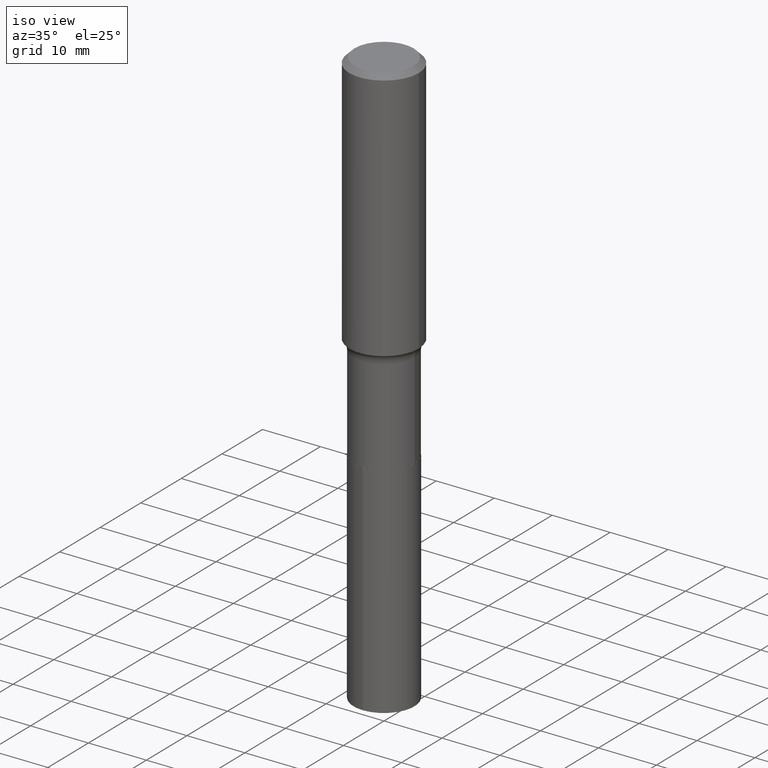
[diagram: clean part render]
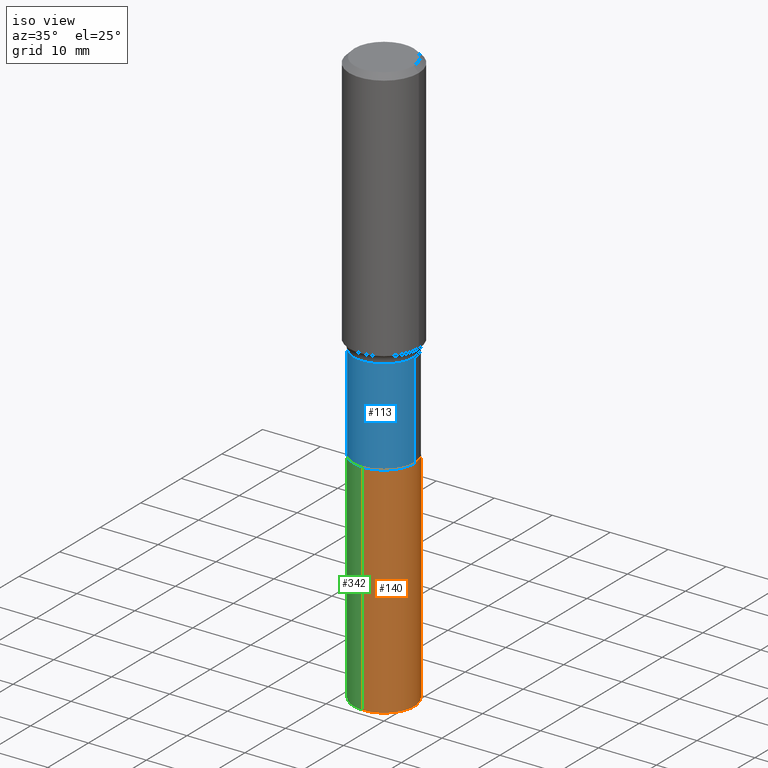
[diagram: same view with three faces highlighted in distinct colors, each labeled with its STEP entity id]
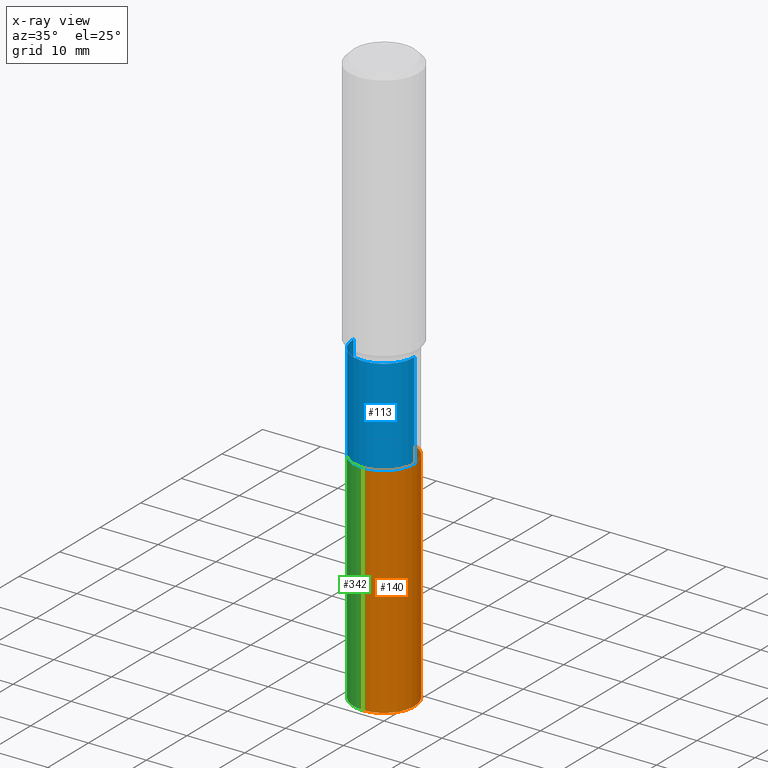
[diagram: x-ray of the same camera — body ghosted, the three highlighted faces saturated]
A machine part, iso view with three faces highlighted in distinct colors.
The next image is the same camera in x-ray (body ghosted, the three faces saturated) — at least one of them is partly hidden behind the body in this view.
Their STEP definitions:

[orange] entity #140 — the highlighted cylindrical surface (partial cylindrical patch) has radius 5.2502 mm, axis along (-0, 0, 1).
#3 = ORIENTED_EDGE ( 'NONE', *, *, #363, .F. ) ;
#7 = EDGE_CURVE ( 'NONE', #198, #469, #202, .T. ) ;
#42 = CARTESIAN_POINT ( 'NONE',  ( 5.969144809017299038E-29, -8.522356799982232966E-15, -2.440900000000000070 ) ) ;
#51 = FACE_OUTER_BOUND ( 'NONE', #417, .T. ) ;
#56 = DIRECTION ( 'NONE',  ( -6.982962677686265133E-15, -1.000000000000000000, 3.964946289788480107E-15 ) ) ;
#59 = AXIS2_PLACEMENT_3D ( 'NONE', #199, #397, #56 ) ;
#66 = DIRECTION ( 'NONE',  ( -2.445425754346182208E-29, 3.491542991526886220E-15, 1.000000000000000000 ) ) ;
#132 = LINE ( 'NONE', #265, #356 ) ;
#140 = ADVANCED_FACE ( 'NONE', ( #51 ), #403, .T. ) ;
#187 = VERTEX_POINT ( 'NONE', #279 ) ;
#198 = VERTEX_POINT ( 'NONE', #427 ) ;
#199 = CARTESIAN_POINT ( 'NONE',  ( 5.969144809017299038E-29, -8.522356799982232966E-15, -2.440900000000000070 ) ) ;
#202 = CIRCLE ( 'NONE', #375, 0.2067000000000000226 ) ;
#204 = CIRCLE ( 'NONE', #300, 0.2067000000000000226 ) ;
#225 = DIRECTION ( 'NONE',  ( -2.445425754346182208E-29, 3.491542991526886220E-15, 1.000000000000000000 ) ) ;
#265 = CARTESIAN_POINT ( 'NONE',  ( -1.443378385477691656E-15, -0.2067000000000085436, -2.440899999999999181 ) ) ;
#279 = CARTESIAN_POINT ( 'NONE',  ( -1.443378385477655369E-15, -0.2067000000000137339, -3.932187779119872495 ) ) ;
#293 = CARTESIAN_POINT ( 'NONE',  ( 9.615978351218758648E-29, -1.372925219351792283E-14, -3.932187779119873383 ) ) ;
#300 = AXIS2_PLACEMENT_3D ( 'NONE', #293, #441, #480 ) ;
#310 = ORIENTED_EDGE ( 'NONE', *, *, #325, .T. ) ;
#312 = VERTEX_POINT ( 'NONE', #440 ) ;
#325 = EDGE_CURVE ( 'NONE', #187, #312, #204, .T. ) ;
#334 = CARTESIAN_POINT ( 'NONE',  ( 1.468691834816186607E-15, 0.2066999999999914739, -2.440900000000000514 ) ) ;
#356 = VECTOR ( 'NONE', #66, 39.37007874015748143 ) ;
#363 = EDGE_CURVE ( 'NONE', #187, #198, #132, .T. ) ;
#366 = ORIENTED_EDGE ( 'NONE', *, *, #7, .F. ) ;
#371 = LINE ( 'NONE', #334, #460 ) ;
#375 = AXIS2_PLACEMENT_3D ( 'NONE', #42, #490, #379 ) ;
#379 = DIRECTION ( 'NONE',  ( -6.982962677686265133E-15, -1.000000000000000000, 3.964946289788480107E-15 ) ) ;
#384 = ORIENTED_EDGE ( 'NONE', *, *, #385, .T. ) ;
#385 = EDGE_CURVE ( 'NONE', #312, #469, #371, .T. ) ;
#397 = DIRECTION ( 'NONE',  ( -2.445425754346182208E-29, 3.491542991526886614E-15, 1.000000000000000000 ) ) ;
#403 = CYLINDRICAL_SURFACE ( 'NONE', #59, 0.2067000000000000226 ) ;
#417 = EDGE_LOOP ( 'NONE', ( #310, #384, #366, #3 ) ) ;
#418 = CARTESIAN_POINT ( 'NONE',  ( 1.468691834816223486E-15, 0.2066999999999915016, -2.440900000000000514 ) ) ;
#427 = CARTESIAN_POINT ( 'NONE',  ( -1.443378385477691656E-15, -0.2067000000000085436, -2.440899999999999181 ) ) ;
#440 = CARTESIAN_POINT ( 'NONE',  ( 1.468691834816223091E-15, 0.2066999999999862836, -3.932187779119873827 ) ) ;
#441 = DIRECTION ( 'NONE',  ( -2.445425754346182208E-29, 3.491542991526886614E-15, 1.000000000000000000 ) ) ;
#460 = VECTOR ( 'NONE', #225, 39.37007874015748143 ) ;
#469 = VERTEX_POINT ( 'NONE', #418 ) ;
#480 = DIRECTION ( 'NONE',  ( -6.982962677686265133E-15, -1.000000000000000000, 2.643297526525653668E-15 ) ) ;
#490 = DIRECTION ( 'NONE',  ( -2.445425754346182208E-29, 3.491542991526886614E-15, 1.000000000000000000 ) ) ;

[blue] entity #113 — the highlighted cylindrical surface (partial cylindrical patch) has radius 5.2502 mm, axis along (-0, 0, 1).
#11 = ORIENTED_EDGE ( 'NONE', *, *, #100, .T. ) ;
#13 = DIRECTION ( 'NONE',  ( -2.445468806185136877E-29, 3.491481338843145188E-15, 1.000000000000000000 ) ) ;
#21 = EDGE_CURVE ( 'NONE', #488, #43, #321, .T. ) ;
#43 = VERTEX_POINT ( 'NONE', #365 ) ;
#45 = VECTOR ( 'NONE', #13, 39.37007874015748143 ) ;
#70 = DIRECTION ( 'NONE',  ( -2.445468806185136597E-29, 3.491481338843145583E-15, 1.000000000000000000 ) ) ;
#71 = CARTESIAN_POINT ( 'NONE',  ( 4.373231866100880373E-29, -6.243816078253197366E-15, -1.788300000000000223 ) ) ;
#80 = EDGE_CURVE ( 'NONE', #488, #464, #388, .T. ) ;
#100 = EDGE_CURVE ( 'NONE', #43, #131, #191, .T. ) ;
#113 = ADVANCED_FACE ( 'NONE', ( #438 ), #395, .T. ) ;
#117 = VECTOR ( 'NONE', #139, 39.37007874015748143 ) ;
#119 = CARTESIAN_POINT ( 'NONE',  ( 0.2066999999999999393, -7.687194463730947793E-15, -1.788300000000000223 ) ) ;
#131 = VERTEX_POINT ( 'NONE', #119 ) ;
#139 = DIRECTION ( 'NONE',  ( -2.445468806185136877E-29, 3.491481338843145188E-15, 1.000000000000000000 ) ) ;
#151 = CARTESIAN_POINT ( 'NONE',  ( -0.2067000000000000226, -5.913521733966878155E-15, -2.440399999999999903 ) ) ;
#183 = DIRECTION ( 'NONE',  ( 1.000000000000000000, -6.982962677686264344E-15, 0.000000000000000000 ) ) ;
#191 = LINE ( 'NONE', #479, #45 ) ;
#210 = CARTESIAN_POINT ( 'NONE',  ( -0.2066999999999999671, 1.468691834816126850E-15, -1.016743883155689005E-29 ) ) ;
#235 = ORIENTED_EDGE ( 'NONE', *, *, #446, .F. ) ;
#245 = CARTESIAN_POINT ( 'NONE',  ( 0.000000000000000000, 0.000000000000000000, 0.000000000000000000 ) ) ;
#247 = CARTESIAN_POINT ( 'NONE',  ( 5.967922074614207358E-29, -8.520611059312812251E-15, -2.440399999999999903 ) ) ;
#255 = DIRECTION ( 'NONE',  ( -2.445468806185136597E-29, 3.491481338843145583E-15, 1.000000000000000000 ) ) ;
#281 = EDGE_LOOP ( 'NONE', ( #421, #317, #11, #235 ) ) ;
#314 = CIRCLE ( 'NONE', #339, 0.2066999999999999393 ) ;
#317 = ORIENTED_EDGE ( 'NONE', *, *, #21, .T. ) ;
#321 = CIRCLE ( 'NONE', #383, 0.2067000000000000226 ) ;
#330 = AXIS2_PLACEMENT_3D ( 'NONE', #245, #255, #362 ) ;
#339 = AXIS2_PLACEMENT_3D ( 'NONE', #71, #70, #183 ) ;
#343 = DIRECTION ( 'NONE',  ( 1.000000000000000000, -6.982962677686269866E-15, 0.000000000000000000 ) ) ;
#362 = DIRECTION ( 'NONE',  ( 1.000000000000000000, -6.982962677686266711E-15, 4.876176775795935793E-29 ) ) ;
#365 = CARTESIAN_POINT ( 'NONE',  ( 0.2067000000000000226, -9.963989444790565044E-15, -2.440399999999999903 ) ) ;
#381 = CARTESIAN_POINT ( 'NONE',  ( -0.2066999999999999393, -5.913521733966878155E-15, -1.788300000000000223 ) ) ;
#383 = AXIS2_PLACEMENT_3D ( 'NONE', #247, #476, #343 ) ;
#388 = LINE ( 'NONE', #210, #117 ) ;
#395 = CYLINDRICAL_SURFACE ( 'NONE', #330, 0.2066999999999999671 ) ;
#421 = ORIENTED_EDGE ( 'NONE', *, *, #80, .F. ) ;
#438 = FACE_OUTER_BOUND ( 'NONE', #281, .T. ) ;
#446 = EDGE_CURVE ( 'NONE', #464, #131, #314, .T. ) ;
#464 = VERTEX_POINT ( 'NONE', #381 ) ;
#476 = DIRECTION ( 'NONE',  ( -2.445468806185136597E-29, 3.491481338843145583E-15, 1.000000000000000000 ) ) ;
#479 = CARTESIAN_POINT ( 'NONE',  ( 0.2066999999999999671, -1.443378385477751018E-15, 1.007905739557019780E-29 ) ) ;
#488 = VERTEX_POINT ( 'NONE', #151 ) ;

[green] entity #342 — the highlighted cylindrical surface (partial cylindrical patch) has radius 5.2502 mm, axis along (-0, 0, 1).
#31 = AXIS2_PLACEMENT_3D ( 'NONE', #134, #102, #142 ) ;
#37 = EDGE_LOOP ( 'NONE', ( #223, #212, #327, #206 ) ) ;
#66 = DIRECTION ( 'NONE',  ( -2.445425754346182208E-29, 3.491542991526886220E-15, 1.000000000000000000 ) ) ;
#102 = DIRECTION ( 'NONE',  ( -2.445425754346182208E-29, 3.491542991526886614E-15, 1.000000000000000000 ) ) ;
#132 = LINE ( 'NONE', #265, #356 ) ;
#134 = CARTESIAN_POINT ( 'NONE',  ( 9.615978351218758648E-29, -1.372925219351792283E-14, -3.932187779119873383 ) ) ;
#142 = DIRECTION ( 'NONE',  ( -6.982962677686265133E-15, -1.000000000000000000, 2.643297526525653668E-15 ) ) ;
#186 = AXIS2_PLACEMENT_3D ( 'NONE', #445, #492, #484 ) ;
#187 = VERTEX_POINT ( 'NONE', #279 ) ;
#198 = VERTEX_POINT ( 'NONE', #427 ) ;
#206 = ORIENTED_EDGE ( 'NONE', *, *, #393, .F. ) ;
#212 = ORIENTED_EDGE ( 'NONE', *, *, #295, .T. ) ;
#223 = ORIENTED_EDGE ( 'NONE', *, *, #385, .F. ) ;
#225 = DIRECTION ( 'NONE',  ( -2.445425754346182208E-29, 3.491542991526886220E-15, 1.000000000000000000 ) ) ;
#261 = DIRECTION ( 'NONE',  ( -6.982962677686265133E-15, -1.000000000000000000, 3.964946289788480107E-15 ) ) ;
#265 = CARTESIAN_POINT ( 'NONE',  ( -1.443378385477691656E-15, -0.2067000000000085436, -2.440899999999999181 ) ) ;
#279 = CARTESIAN_POINT ( 'NONE',  ( -1.443378385477655369E-15, -0.2067000000000137339, -3.932187779119872495 ) ) ;
#287 = AXIS2_PLACEMENT_3D ( 'NONE', #378, #447, #261 ) ;
#295 = EDGE_CURVE ( 'NONE', #312, #187, #355, .T. ) ;
#297 = CYLINDRICAL_SURFACE ( 'NONE', #287, 0.2067000000000000226 ) ;
#298 = FACE_OUTER_BOUND ( 'NONE', #37, .T. ) ;
#312 = VERTEX_POINT ( 'NONE', #440 ) ;
#327 = ORIENTED_EDGE ( 'NONE', *, *, #363, .T. ) ;
#334 = CARTESIAN_POINT ( 'NONE',  ( 1.468691834816186607E-15, 0.2066999999999914739, -2.440900000000000514 ) ) ;
#342 = ADVANCED_FACE ( 'NONE', ( #298 ), #297, .T. ) ;
#355 = CIRCLE ( 'NONE', #31, 0.2067000000000000226 ) ;
#356 = VECTOR ( 'NONE', #66, 39.37007874015748143 ) ;
#363 = EDGE_CURVE ( 'NONE', #187, #198, #132, .T. ) ;
#371 = LINE ( 'NONE', #334, #460 ) ;
#378 = CARTESIAN_POINT ( 'NONE',  ( 5.969144809017299038E-29, -8.522356799982232966E-15, -2.440900000000000070 ) ) ;
#385 = EDGE_CURVE ( 'NONE', #312, #469, #371, .T. ) ;
#391 = CIRCLE ( 'NONE', #186, 0.2067000000000000226 ) ;
#393 = EDGE_CURVE ( 'NONE', #469, #198, #391, .T. ) ;
#418 = CARTESIAN_POINT ( 'NONE',  ( 1.468691834816223486E-15, 0.2066999999999915016, -2.440900000000000514 ) ) ;
#427 = CARTESIAN_POINT ( 'NONE',  ( -1.443378385477691656E-15, -0.2067000000000085436, -2.440899999999999181 ) ) ;
#440 = CARTESIAN_POINT ( 'NONE',  ( 1.468691834816223091E-15, 0.2066999999999862836, -3.932187779119873827 ) ) ;
#445 = CARTESIAN_POINT ( 'NONE',  ( 5.969144809017299038E-29, -8.522356799982232966E-15, -2.440900000000000070 ) ) ;
#447 = DIRECTION ( 'NONE',  ( -2.445425754346182208E-29, 3.491542991526886614E-15, 1.000000000000000000 ) ) ;
#460 = VECTOR ( 'NONE', #225, 39.37007874015748143 ) ;
#469 = VERTEX_POINT ( 'NONE', #418 ) ;
#484 = DIRECTION ( 'NONE',  ( -6.982962677686265133E-15, -1.000000000000000000, 3.964946289788480107E-15 ) ) ;
#492 = DIRECTION ( 'NONE',  ( -2.445425754346182208E-29, 3.491542991526886614E-15, 1.000000000000000000 ) ) ;